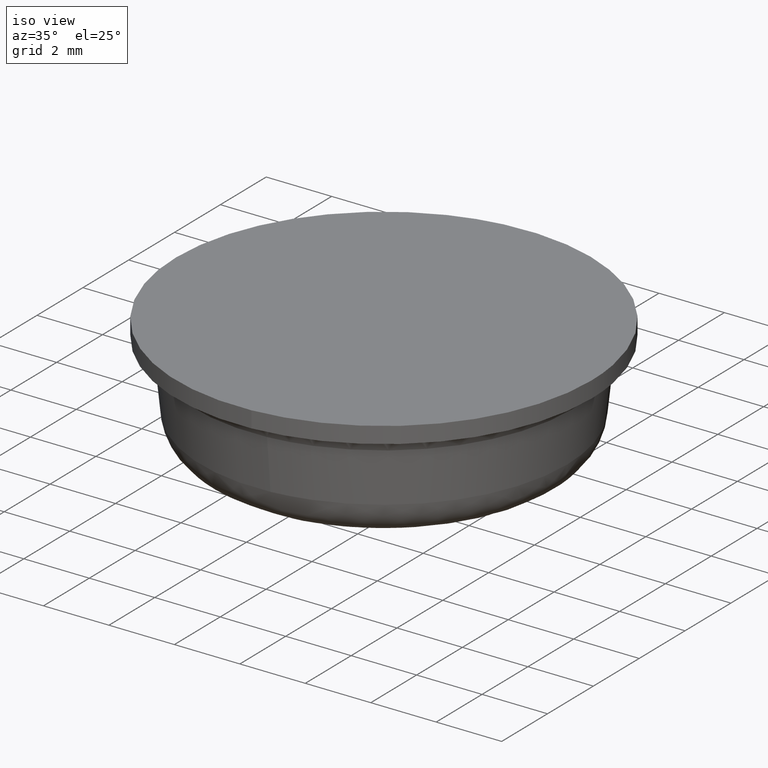
[diagram: clean part render]
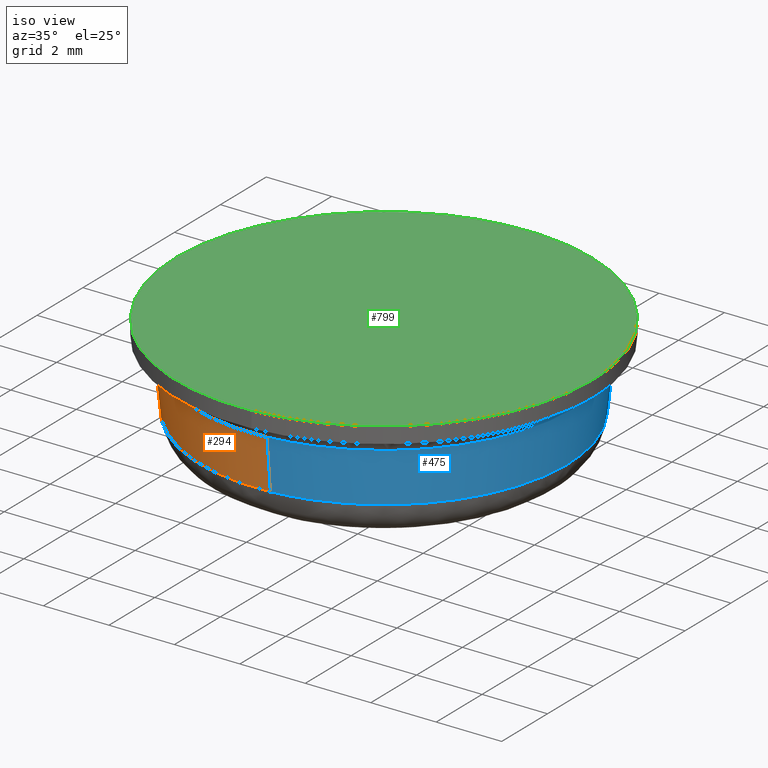
[diagram: same view with three faces highlighted in distinct colors, each labeled with its STEP entity id]
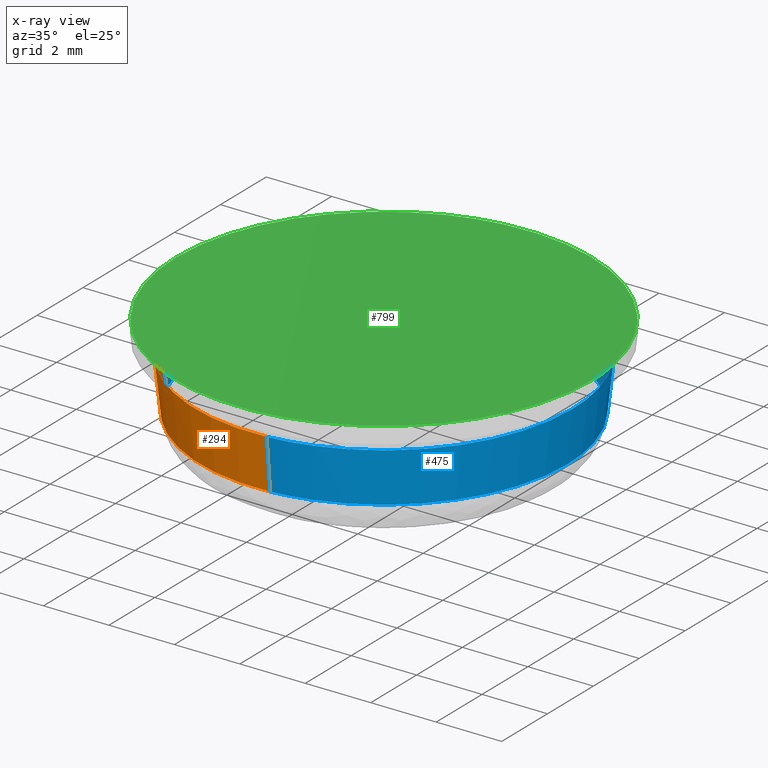
[diagram: x-ray of the same camera — body ghosted, the three highlighted faces saturated]
A machine part, iso view with three faces highlighted in distinct colors.
The next image is the same camera in x-ray (body ghosted, the three faces saturated) — at least one of them is partly hidden behind the body in this view.
Their STEP definitions:

[orange] entity #294 — the highlighted face is a freeform B-spline surface patch.
#230=CARTESIAN_POINT('',(-5.201497614417154,-2.057981043865503,1.035123186351243));
#231=CARTESIAN_POINT('',(-3.681069193811247,-5.900827325782242,1.035123186351243));
#232=CARTESIAN_POINT('',(0.438886347921793,-5.576579792606306,1.035123186351243));
#233=CARTESIAN_POINT('',(-5.363496340887895,-2.122076105119221,2.692692757804774));
#234=CARTESIAN_POINT('',(-3.795714737393780,-6.084606418413349,2.692692757804775));
#235=CARTESIAN_POINT('',(0.452555301500020,-5.750260315300521,2.692692757804776));
#243=(BOUNDED_SURFACE()B_SPLINE_SURFACE(2,1,((#230,#233),(#231,#234),(#232,#235)),.UNSPECIFIED.,.F.,.F.,.U.)B_SPLINE_SURFACE_WITH_KNOTS((3,3),(2,2),(0.0,7.593330558057930),(0.0,1.0),.UNSPECIFIED.)GEOMETRIC_REPRESENTATION_ITEM()RATIONAL_B_SPLINE_SURFACE(((0.906274169979695,0.906274169979695),(0.765685424949238,0.765685424949238),(1.0,1.0)))REPRESENTATION_ITEM('')SURFACE());
#244=CARTESIAN_POINT('',(0.439207102130143,-5.580712803678572,1.074564380823434));
#245=VERTEX_POINT('',#244);
#246=CARTESIAN_POINT('',(-5.205353386921967,-2.059503371275750,1.074564162696577));
#247=VERTEX_POINT('',#246);
#248=CARTESIAN_POINT('',(0.439207102130142,-5.580712803678572,1.074564380823434));
#249=CARTESIAN_POINT('',(0.219942547773884,-5.597969123065714,1.074564375023362));
#250=CARTESIAN_POINT('',(-1.954018E-009,-5.597969125184395,1.074564368904969));
#251=CARTESIAN_POINT('',(-3.805355849520708,-5.597969161840955,1.074564263047052));
#252=CARTESIAN_POINT('',(-5.205353386921967,-2.059503371275750,1.074564162696577));
#260=(BOUNDED_CURVE()B_SPLINE_CURVE(2,(#248,#249,#250,#251,#252),.UNSPECIFIED.,.F.,.U.)B_SPLINE_CURVE_WITH_KNOTS((3,2,3),(0.736331438645305,0.750000000000000,0.937532633986745),.UNSPECIFIED.)CURVE()GEOMETRIC_REPRESENTATION_ITEM()RATIONAL_B_SPLINE_CURVE((0.969723644193632,0.983986284273097,1.0,0.780291852796229,0.890203286020223))REPRESENTATION_ITEM(''));
#261=EDGE_CURVE('',#245,#247,#260,.T.);
#262=ORIENTED_EDGE('',*,*,#261,.F.);
#263=CARTESIAN_POINT('',(0.452221912391857,-5.746024204986665,2.652264231634147));
#264=VERTEX_POINT('',#263);
#265=CARTESIAN_POINT('',(0.439207102130143,-5.580712803678572,1.074564380823434));
#266=CARTESIAN_POINT('',(0.452221912391857,-5.746024204986665,2.652264231634147));
#267=QUASI_UNIFORM_CURVE('',1,(#265,#266),.UNSPECIFIED.,.F.,.U.);
#268=EDGE_CURVE('',#245,#264,#267,.T.);
#269=ORIENTED_EDGE('',*,*,#268,.T.);
#270=CARTESIAN_POINT('',(-5.359545755899575,-2.120511014295906,2.652263281644852));
#271=VERTEX_POINT('',#270);
#272=CARTESIAN_POINT('',(0.452221912391857,-5.746024204986665,2.652264231634146));
#273=CARTESIAN_POINT('',(0.226460006509275,-5.763792052315869,2.652264231633806));
#274=CARTESIAN_POINT('',(0.0,-5.763792052315869,2.652264231633805));
#275=CARTESIAN_POINT('',(-3.918077141644606,-5.763792052315869,2.652264231633805));
#276=CARTESIAN_POINT('',(-5.359545755899575,-2.120511014295907,2.652263281644852));
#284=(BOUNDED_CURVE()B_SPLINE_CURVE(2,(#272,#273,#274,#275,#276),.UNSPECIFIED.,.F.,.U.)B_SPLINE_CURVE_WITH_KNOTS((3,2,3),(0.736331300632539,0.750000000000000,0.937532601614025),.UNSPECIFIED.)CURVE()GEOMETRIC_REPRESENTATION_ITEM()RATIONAL_B_SPLINE_CURVE((0.969723356171341,0.983986122581084,1.0,0.780291890723230,0.890203248073429))REPRESENTATION_ITEM(''));
#285=EDGE_CURVE('',#264,#271,#284,.T.);
#286=ORIENTED_EDGE('',*,*,#285,.T.);
#287=CARTESIAN_POINT('',(-5.205353386921967,-2.059503371275750,1.074564162696577));
#288=CARTESIAN_POINT('',(-5.359545755899575,-2.120511014295906,2.652263281644852));
#289=QUASI_UNIFORM_CURVE('',1,(#287,#288),.UNSPECIFIED.,.F.,.U.);
#290=EDGE_CURVE('',#247,#271,#289,.T.);
#291=ORIENTED_EDGE('',*,*,#290,.F.);
#292=EDGE_LOOP('',(#262,#269,#286,#291));
#293=FACE_OUTER_BOUND('',#292,.T.);
#294=ADVANCED_FACE('',(#293),#243,.T.);

[blue] entity #475 — the highlighted face is a freeform B-spline surface patch.
#244=CARTESIAN_POINT('',(0.439207102130143,-5.580712803678572,1.074564380823434));
#245=VERTEX_POINT('',#244);
#246=CARTESIAN_POINT('',(-5.205353386921967,-2.059503371275750,1.074564162696577));
#247=VERTEX_POINT('',#246);
#263=CARTESIAN_POINT('',(0.452221912391857,-5.746024204986665,2.652264231634147));
#264=VERTEX_POINT('',#263);
#265=CARTESIAN_POINT('',(0.439207102130143,-5.580712803678572,1.074564380823434));
#266=CARTESIAN_POINT('',(0.452221912391857,-5.746024204986665,2.652264231634147));
#267=QUASI_UNIFORM_CURVE('',1,(#265,#266),.UNSPECIFIED.,.F.,.U.);
#268=EDGE_CURVE('',#245,#264,#267,.T.);
#270=CARTESIAN_POINT('',(-5.359545755899575,-2.120511014295906,2.652263281644852));
#271=VERTEX_POINT('',#270);
#287=CARTESIAN_POINT('',(-5.205353386921967,-2.059503371275750,1.074564162696577));
#288=CARTESIAN_POINT('',(-5.359545755899575,-2.120511014295906,2.652263281644852));
#289=QUASI_UNIFORM_CURVE('',1,(#287,#288),.UNSPECIFIED.,.F.,.U.);
#290=EDGE_CURVE('',#247,#271,#289,.T.);
#295=CARTESIAN_POINT('',(0.438886347921793,-5.576579792606306,1.035123186351243));
#296=CARTESIAN_POINT('',(6.015466140528099,-5.137693444684512,1.035123186351243));
#297=CARTESIAN_POINT('',(5.576579792606306,0.438886347921793,1.035123186351243));
#298=CARTESIAN_POINT('',(5.137693444684512,6.015466140528099,1.035123186351243));
#299=CARTESIAN_POINT('',(-0.438886347921793,5.576579792606306,1.035123186351243));
#300=CARTESIAN_POINT('',(-6.015466140528099,5.137693444684512,1.035123186351243));
#301=CARTESIAN_POINT('',(-5.576579792606306,-0.438886347921793,1.035123186351243));
#302=CARTESIAN_POINT('',(-5.510649800530054,-1.276606325497019,1.035123186351243));
#303=CARTESIAN_POINT('',(-5.201497614417154,-2.057981043865503,1.035123186351243));
#304=CARTESIAN_POINT('',(0.452555301500020,-5.750260315300521,2.692692757804776));
#305=CARTESIAN_POINT('',(6.202815616800540,-5.297705013800501,2.692692757804776));
#306=CARTESIAN_POINT('',(5.750260315300521,0.452555301500020,2.692692757804776));
#307=CARTESIAN_POINT('',(5.297705013800501,6.202815616800540,2.692692757804776));
#308=CARTESIAN_POINT('',(-0.452555301500020,5.750260315300521,2.692692757804776));
#309=CARTESIAN_POINT('',(-6.202815616800540,5.297705013800501,2.692692757804776));
#310=CARTESIAN_POINT('',(-5.750260315300521,-0.452555301500020,2.692692757804776));
#311=CARTESIAN_POINT('',(-5.682276957915983,-1.316365759080492,2.692692757804775));
#312=CARTESIAN_POINT('',(-5.363496340887895,-2.122076105119221,2.692692757804774));
#320=(BOUNDED_SURFACE()B_SPLINE_SURFACE(2,1,((#295,#304),(#296,#305),(#297,#306),(#298,#307),(#299,#308),(#300,#309),(#301,#310),(#302,#311),(#303,#312)),.UNSPECIFIED.,.F.,.F.,.U.)B_SPLINE_SURFACE_WITH_KNOTS((3,2,2,2,3),(2,2),(0.0,9.556803675402344,19.113607350804688,28.670411026207031,30.581771761287499),(0.0,1.0),.UNSPECIFIED.)GEOMETRIC_REPRESENTATION_ITEM()RATIONAL_B_SPLINE_SURFACE(((1.0,1.0),(0.707106781186548,0.707106781186548),(1.0,1.0),(0.707106781186548,0.707106781186548),(1.0,1.0),(0.707106781186548,0.707106781186548),(1.0,1.0),(0.941421356237310,0.941421356237310),(0.906274169979695,0.906274169979695)))REPRESENTATION_ITEM('')SURFACE());
#321=CARTESIAN_POINT('',(-5.597969254135790,0.0,1.074565650878980));
#322=VERTEX_POINT('',#321);
#323=CARTESIAN_POINT('',(-5.205353386921967,-2.059503371275750,1.074564162696577));
#324=CARTESIAN_POINT('',(-5.597969181413372,-1.067175052558030,1.074564906787779));
#325=CARTESIAN_POINT('',(-5.597969254135790,0.0,1.074565650878980));
#333=(BOUNDED_CURVE()B_SPLINE_CURVE(2,(#323,#324,#325),.UNSPECIFIED.,.F.,.U.)B_SPLINE_CURVE_WITH_KNOTS((3,3),(0.937532633986745,1.0),.UNSPECIFIED.)CURVE()GEOMETRIC_REPRESENTATION_ITEM()RATIONAL_B_SPLINE_CURVE((0.890203286020223,0.926814928390319,1.0))REPRESENTATION_ITEM(''));
#334=EDGE_CURVE('',#247,#322,#333,.T.);
#335=ORIENTED_EDGE('',*,*,#334,.F.);
#336=ORIENTED_EDGE('',*,*,#290,.T.);
#337=CARTESIAN_POINT('',(-5.763792052315869,0.0,2.652264231633805));
#338=VERTEX_POINT('',#337);
#339=CARTESIAN_POINT('',(-5.359545755899575,-2.120511014295907,2.652263281644852));
#340=CARTESIAN_POINT('',(-5.763792052315869,-1.098787508883521,2.652264231633805));
#341=CARTESIAN_POINT('',(-5.763792052315869,0.0,2.652264231633805));
#349=(BOUNDED_CURVE()B_SPLINE_CURVE(2,(#339,#340,#341),.UNSPECIFIED.,.F.,.U.)B_SPLINE_CURVE_WITH_KNOTS((3,3),(0.937532601614025,1.0),.UNSPECIFIED.)CURVE()GEOMETRIC_REPRESENTATION_ITEM()RATIONAL_B_SPLINE_CURVE((0.890203248073429,0.926814890463318,1.0))REPRESENTATION_ITEM(''));
#350=EDGE_CURVE('',#271,#338,#349,.T.);
#351=ORIENTED_EDGE('',*,*,#350,.T.);
#352=CARTESIAN_POINT('',(-5.734690764123986,0.578464054420458,2.652264231671762));
#353=VERTEX_POINT('',#352);
#354=CARTESIAN_POINT('',(-5.763792052315869,0.0,2.652264231633805));
#355=CARTESIAN_POINT('',(-5.763792052315870,0.289964038966353,2.652264231633805));
#356=CARTESIAN_POINT('',(-5.734690764123987,0.578464054420459,2.652264231671762));
#364=(BOUNDED_CURVE()B_SPLINE_CURVE(2,(#354,#355,#356),.UNSPECIFIED.,.F.,.U.)B_SPLINE_CURVE_WITH_KNOTS((3,3),(0.0,0.017423441082362),.UNSPECIFIED.)CURVE()GEOMETRIC_REPRESENTATION_ITEM()RATIONAL_B_SPLINE_CURVE((1.0,0.979587169034322,0.962019632129881))REPRESENTATION_ITEM(''));
#365=EDGE_CURVE('',#338,#353,#364,.T.);
#366=ORIENTED_EDGE('',*,*,#365,.T.);
#367=CARTESIAN_POINT('',(1.236746727380552,5.629543174600428,2.652264231664552));
#368=VERTEX_POINT('',#367);
#369=CARTESIAN_POINT('',(-5.734690764123987,0.578464054420459,2.652264231671762));
#370=CARTESIAN_POINT('',(-5.211641487261411,5.763792052315870,2.652264231633804));
#371=CARTESIAN_POINT('',(0.0,5.763792052315869,2.652264231633805));
#372=CARTESIAN_POINT('',(0.625659722639259,5.763792052315869,2.652264231633805));
#373=CARTESIAN_POINT('',(1.236746727380552,5.629543174600428,2.652264231664551));
#381=(BOUNDED_CURVE()B_SPLINE_CURVE(2,(#369,#370,#371,#372,#373),.UNSPECIFIED.,.F.,.U.)B_SPLINE_CURVE_WITH_KNOTS((3,2,3),(0.017423441082362,0.250000000000000,0.286726879777792),.UNSPECIFIED.)CURVE()GEOMETRIC_REPRESENTATION_ITEM()RATIONAL_B_SPLINE_CURVE((0.962019632129881,0.727519612152226,1.0,0.956971783859631,0.926585904689183))REPRESENTATION_ITEM(''));
#382=EDGE_CURVE('',#353,#368,#381,.T.);
#383=ORIENTED_EDGE('',*,*,#382,.T.);
#384=CARTESIAN_POINT('',(5.763792052315869,0.0,2.652264231633805));
#385=VERTEX_POINT('',#384);
#386=CARTESIAN_POINT('',(1.236746727380552,5.629543174600428,2.652264231664551));
#387=CARTESIAN_POINT('',(5.763792052315870,4.635002708936676,2.652264231633806));
#388=CARTESIAN_POINT('',(5.763792052315869,0.0,2.652264231633805));
#396=(BOUNDED_CURVE()B_SPLINE_CURVE(2,(#386,#387,#388),.UNSPECIFIED.,.F.,.U.)B_SPLINE_CURVE_WITH_KNOTS((3,3),(0.286726879777792,0.500000000000000),.UNSPECIFIED.)CURVE()GEOMETRIC_REPRESENTATION_ITEM()RATIONAL_B_SPLINE_CURVE((0.926585904689183,0.750134997326917,1.0))REPRESENTATION_ITEM(''));
#397=EDGE_CURVE('',#368,#385,#396,.T.);
#398=ORIENTED_EDGE('',*,*,#397,.T.);
#399=CARTESIAN_POINT('',(5.763792052315869,0.0,2.652264231633805));
#400=CARTESIAN_POINT('',(5.763792052315871,-5.327994569048848,2.652264231633806));
#401=CARTESIAN_POINT('',(0.452221912391857,-5.746024204986665,2.652264231634146));
#409=(BOUNDED_CURVE()B_SPLINE_CURVE(2,(#399,#400,#401),.UNSPECIFIED.,.F.,.U.)B_SPLINE_CURVE_WITH_KNOTS((3,3),(0.500000000000000,0.736331300632540),.UNSPECIFIED.)CURVE()GEOMETRIC_REPRESENTATION_ITEM()RATIONAL_B_SPLINE_CURVE((1.0,0.723120658605463,0.969723356171341))REPRESENTATION_ITEM(''));
#410=EDGE_CURVE('',#385,#264,#409,.T.);
#411=ORIENTED_EDGE('',*,*,#410,.T.);
#412=ORIENTED_EDGE('',*,*,#268,.F.);
#413=CARTESIAN_POINT('',(5.597969254135790,0.0,1.074565650878980));
#414=VERTEX_POINT('',#413);
#415=CARTESIAN_POINT('',(5.597969254135790,0.0,1.074565650878980));
#416=CARTESIAN_POINT('',(5.597969248899088,-5.174713663581082,1.074565015851207));
#417=CARTESIAN_POINT('',(0.439207102130142,-5.580712803678572,1.074564380823434));
#425=(BOUNDED_CURVE()B_SPLINE_CURVE(2,(#415,#416,#417),.UNSPECIFIED.,.F.,.U.)B_SPLINE_CURVE_WITH_KNOTS((3,3),(0.500000000000000,0.736331438645305),.UNSPECIFIED.)CURVE()GEOMETRIC_REPRESENTATION_ITEM()RATIONAL_B_SPLINE_CURVE((1.0,0.723120496913451,0.969723644193632))REPRESENTATION_ITEM(''));
#426=EDGE_CURVE('',#414,#245,#425,.T.);
#427=ORIENTED_EDGE('',*,*,#426,.F.);
#428=CARTESIAN_POINT('',(0.172060482457668,5.595324383859992,1.074565650872323));
#429=VERTEX_POINT('',#428);
#430=CARTESIAN_POINT('',(0.172060482457668,5.595324383859992,1.074565650872324));
#431=CARTESIAN_POINT('',(5.597969254135790,5.428473560390438,1.074565650878980));
#432=CARTESIAN_POINT('',(5.597969254135790,0.0,1.074565650878980));
#440=(BOUNDED_CURVE()B_SPLINE_CURVE(2,(#430,#431,#432),.UNSPECIFIED.,.F.,.U.)B_SPLINE_CURVE_WITH_KNOTS((3,3),(0.255400348391136,0.500000000000000),.UNSPECIFIED.)CURVE()GEOMETRIC_REPRESENTATION_ITEM()RATIONAL_B_SPLINE_CURVE((0.987619536403035,0.713433682878522,1.0))REPRESENTATION_ITEM(''));
#441=EDGE_CURVE('',#429,#414,#440,.T.);
#442=ORIENTED_EDGE('',*,*,#441,.F.);
#443=CARTESIAN_POINT('',(-5.576325316993973,0.491788297230194,1.074565650871256));
#444=VERTEX_POINT('',#443);
#445=CARTESIAN_POINT('',(-5.576325316993973,0.491788297230194,1.074565650871256));
#446=CARTESIAN_POINT('',(-5.126000076734167,5.597969254135789,1.074565650878980));
#447=CARTESIAN_POINT('',(0.0,5.597969254135790,1.074565650878980));
#448=CARTESIAN_POINT('',(0.086050569368109,5.597969254135790,1.074565650878980));
#449=CARTESIAN_POINT('',(0.172060482457668,5.595324383859992,1.074565650872324));
#457=(BOUNDED_CURVE()B_SPLINE_CURVE(2,(#445,#446,#447,#448,#449),.UNSPECIFIED.,.F.,.U.)B_SPLINE_CURVE_WITH_KNOTS((3,2,3),(0.015281545143967,0.250000000000000,0.255400348391136),.UNSPECIFIED.)CURVE()GEOMETRIC_REPRESENTATION_ITEM()RATIONAL_B_SPLINE_CURVE((0.966381850709897,0.725010224969186,1.0,0.993673098308025,0.987619536403035))REPRESENTATION_ITEM(''));
#458=EDGE_CURVE('',#444,#429,#457,.T.);
#459=ORIENTED_EDGE('',*,*,#458,.F.);
#460=CARTESIAN_POINT('',(-5.597969254135790,0.0,1.074565650878980));
#461=CARTESIAN_POINT('',(-5.597969254135791,0.246370430805746,1.074565650878981));
#462=CARTESIAN_POINT('',(-5.576325316993973,0.491788297230194,1.074565650871256));
#470=(BOUNDED_CURVE()B_SPLINE_CURVE(2,(#460,#461,#462),.UNSPECIFIED.,.F.,.U.)B_SPLINE_CURVE_WITH_KNOTS((3,3),(0.0,0.015281545143967),.UNSPECIFIED.)CURVE()GEOMETRIC_REPRESENTATION_ITEM()RATIONAL_B_SPLINE_CURVE((1.0,0.982096556217361,0.966381850709897))REPRESENTATION_ITEM(''));
#471=EDGE_CURVE('',#322,#444,#470,.T.);
#472=ORIENTED_EDGE('',*,*,#471,.F.);
#473=EDGE_LOOP('',(#335,#336,#351,#366,#383,#398,#411,#412,#427,#442,#459,#472));
#474=FACE_OUTER_BOUND('',#473,.T.);
#475=ADVANCED_FACE('',(#474),#320,.T.);

[green] entity #799 — the highlighted face is a freeform B-spline surface patch.
#66=CARTESIAN_POINT('',(-0.749513375861459,6.305610969556273,3.599999999999921));
#67=VERTEX_POINT('',#66);
#68=CARTESIAN_POINT('',(6.350000000000000,0.0,3.600000000000000));
#69=VERTEX_POINT('',#68);
#70=CARTESIAN_POINT('',(-0.749513375861459,6.305610969556273,3.599999999999921));
#71=CARTESIAN_POINT('',(-0.376071131466490,6.350000000000000,3.600000000000001));
#72=CARTESIAN_POINT('',(0.0,6.350000000000000,3.600000000000000));
#73=CARTESIAN_POINT('',(6.350000000000000,6.350000000000000,3.600000000000000));
#74=CARTESIAN_POINT('',(6.350000000000000,0.0,3.600000000000000));
#82=(BOUNDED_CURVE()B_SPLINE_CURVE(2,(#70,#71,#72,#73,#74),.UNSPECIFIED.,.F.,.U.)B_SPLINE_CURVE_WITH_KNOTS((3,2,3),(0.229562581104653,0.250000000000000,0.500000000000000),.UNSPECIFIED.)CURVE()GEOMETRIC_REPRESENTATION_ITEM()RATIONAL_B_SPLINE_CURVE((0.956026965066855,0.976056074382012,1.0,0.707106781186547,1.0))REPRESENTATION_ITEM(''));
#83=EDGE_CURVE('',#67,#69,#82,.T.);
#85=CARTESIAN_POINT('',(0.387655958614094,-6.338156108660137,3.599999999999948));
#86=VERTEX_POINT('',#85);
#87=CARTESIAN_POINT('',(6.350000000000000,0.0,3.600000000000000));
#88=CARTESIAN_POINT('',(6.349999999999999,-5.973485665817968,3.600000000000000));
#89=CARTESIAN_POINT('',(0.387655958614094,-6.338156108660137,3.599999999999948));
#97=(BOUNDED_CURVE()B_SPLINE_CURVE(2,(#87,#88,#89),.UNSPECIFIED.,.F.,.U.)B_SPLINE_CURVE_WITH_KNOTS((3,3),(0.500000000000000,0.739333023969413),.UNSPECIFIED.)CURVE()GEOMETRIC_REPRESENTATION_ITEM()RATIONAL_B_SPLINE_CURVE((1.0,0.719603920964966,0.976072173966902))REPRESENTATION_ITEM(''));
#98=EDGE_CURVE('',#69,#86,#97,.T.);
#165=CARTESIAN_POINT('',(-6.350000000000000,0.0,3.600000000000000));
#166=VERTEX_POINT('',#165);
#167=CARTESIAN_POINT('',(-6.350000000000000,0.0,3.600000000000000));
#168=CARTESIAN_POINT('',(-6.350000000000001,5.639911855484185,3.599999999999999));
#169=CARTESIAN_POINT('',(-0.749513375861459,6.305610969556273,3.599999999999921));
#177=(BOUNDED_CURVE()B_SPLINE_CURVE(2,(#167,#168,#169),.UNSPECIFIED.,.F.,.U.)B_SPLINE_CURVE_WITH_KNOTS((3,3),(0.0,0.229562581104653),.UNSPECIFIED.)CURVE()GEOMETRIC_REPRESENTATION_ITEM()RATIONAL_B_SPLINE_CURVE((1.0,0.731050706804535,0.956026965066855))REPRESENTATION_ITEM(''));
#178=EDGE_CURVE('',#166,#67,#177,.T.);
#212=CARTESIAN_POINT('',(0.387655958614094,-6.338156108660137,3.599999999999948));
#213=CARTESIAN_POINT('',(0.194008910051117,-6.350000000000001,3.600000000000000));
#214=CARTESIAN_POINT('',(0.0,-6.350000000000000,3.600000000000000));
#215=CARTESIAN_POINT('',(-6.350000000000000,-6.350000000000000,3.600000000000000));
#216=CARTESIAN_POINT('',(-6.350000000000000,0.0,3.600000000000000));
#224=(BOUNDED_CURVE()B_SPLINE_CURVE(2,(#212,#213,#214,#215,#216),.UNSPECIFIED.,.F.,.U.)B_SPLINE_CURVE_WITH_KNOTS((3,2,3),(0.739333023969413,0.750000000000000,1.0),.UNSPECIFIED.)CURVE()GEOMETRIC_REPRESENTATION_ITEM()RATIONAL_B_SPLINE_CURVE((0.976072173966902,0.987502860221582,1.0,0.707106781186547,1.0))REPRESENTATION_ITEM(''));
#225=EDGE_CURVE('',#86,#166,#224,.T.);
#788=CARTESIAN_POINT('',(6.984364856166421,-6.984210541247647,3.600000000000000));
#789=CARTESIAN_POINT('',(-6.984365310353813,-6.984210541247647,3.600000000000000));
#790=CARTESIAN_POINT('',(6.984364856166421,6.984249487816612,3.600000000000000));
#791=CARTESIAN_POINT('',(-6.984365310353813,6.984249487816613,3.600000000000000));
#792=B_SPLINE_SURFACE_WITH_KNOTS('',1,1,((#788,#790),(#789,#791)),.UNSPECIFIED.,.F.,.F.,.U.,(2,2),(2,2),(0.0,13.968730166520240),(0.0,13.968460029064261),.UNSPECIFIED.);
#793=ORIENTED_EDGE('',*,*,#225,.F.);
#794=ORIENTED_EDGE('',*,*,#98,.F.);
#795=ORIENTED_EDGE('',*,*,#83,.F.);
#796=ORIENTED_EDGE('',*,*,#178,.F.);
#797=EDGE_LOOP('',(#793,#794,#795,#796));
#798=FACE_OUTER_BOUND('',#797,.T.);
#799=ADVANCED_FACE('',(#798),#792,.F.);